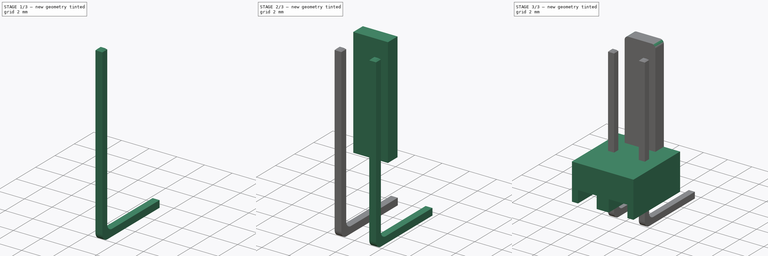
[diagram: build sequence overview — one tinted view per stage of 3, left to right]
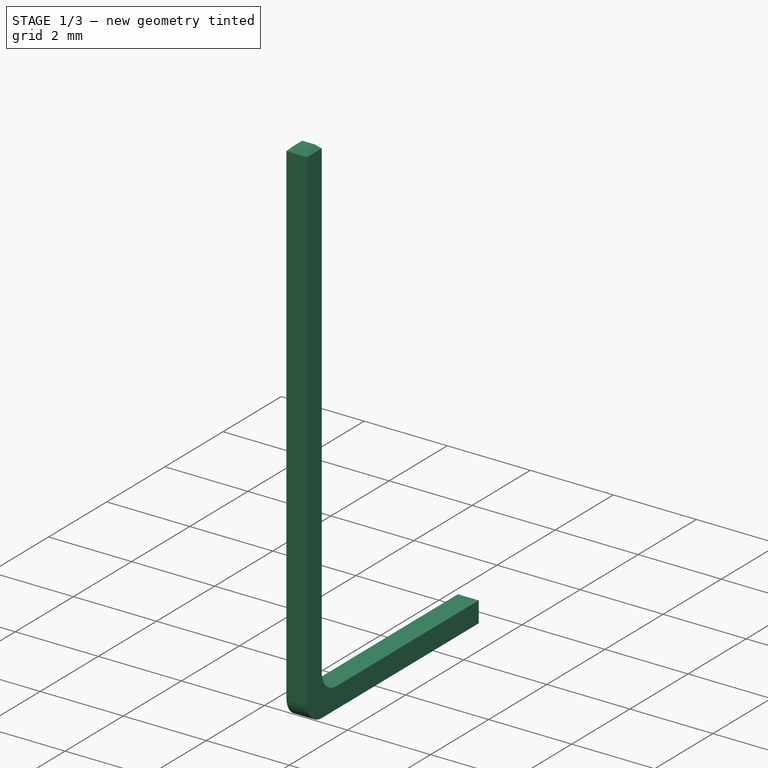
[diagram: stage 1 of 3 — iso view after this stage's code; geometry added in this stage tinted green]
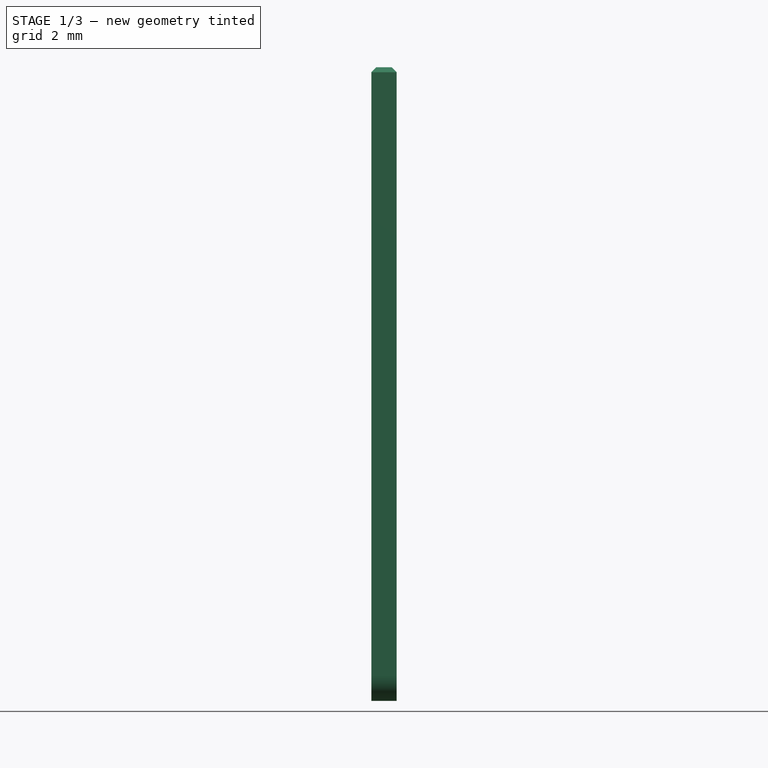
[diagram: stage 1 of 3 — front view after this stage's code; geometry added in this stage tinted green]
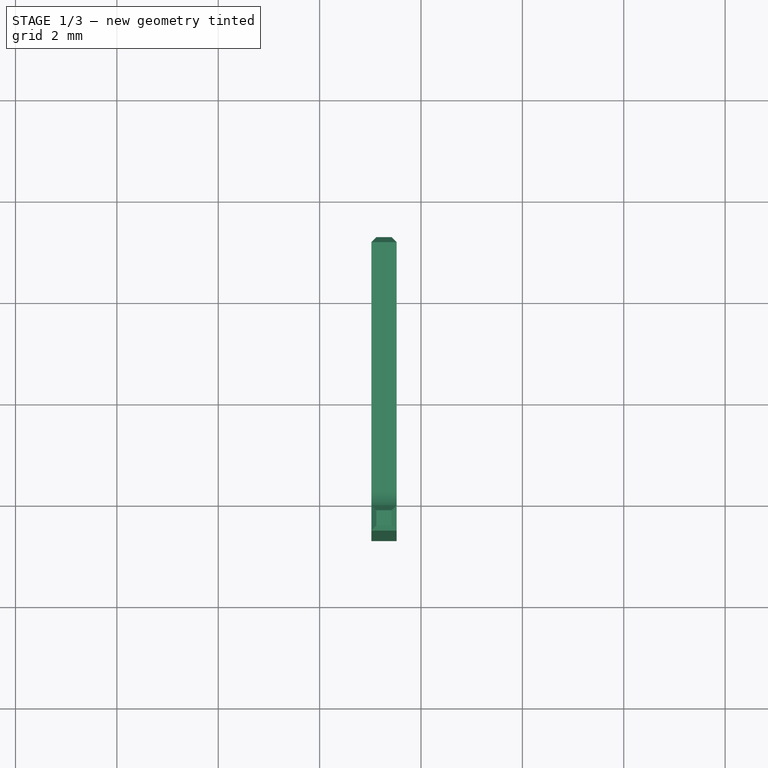
[diagram: stage 1 of 3 — top view after this stage's code; geometry added in this stage tinted green]
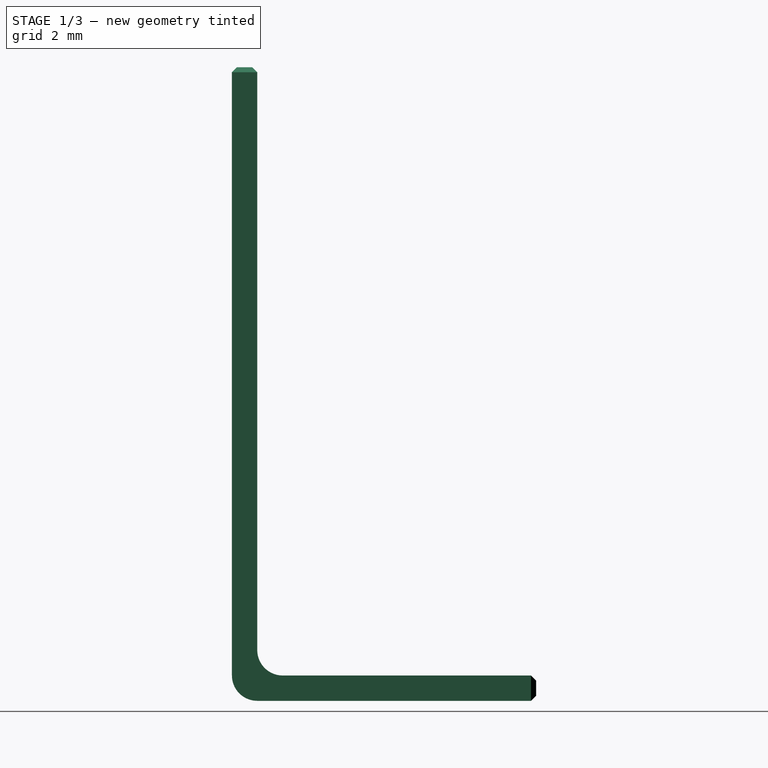
[diagram: stage 1 of 3 — right view after this stage's code; geometry added in this stage tinted green]
FCSTD DOCUMENT  (FreeCAD 0.16R6228 (Git))
Label: main_PA
License: All rights reserved
LicenseURL: http://en.wikipedia.org/wiki/All_rights_reserved
objects: Sketcher::SketchObject×3, PartDesign::Pad×3, Part::FeaturePython×2, PartDesign::Fillet×2, Spreadsheet::Sheet×1, PartDesign::Chamfer×1
note: 14 computed .brp shape members not serialized (recipe doc carries the construction recipe); baked Part::Feature solids carry a one-line shape summary decoded from their .brp

FEATURE [Sketcher::SketchObject] Sketch003
  Placement = pos=(1.02,0,0) rot=(0.57735,0.57735,0.57735;2.0944rad)
  sketch-geometry (6):
    g0: LineSegment StartX=-2.7 StartY=10.5 StartZ=0 EndX=-2.7 EndY=-2 EndZ=0
    g1: LineSegment StartX=-2.7 StartY=-2 StartZ=0 EndX=3.3 EndY=-2 EndZ=0
    g2: LineSegment StartX=3.3 StartY=-2 StartZ=0 EndX=3.3 EndY=-1.5 EndZ=0
    g3: LineSegment StartX=3.3 StartY=-1.5 StartZ=0 EndX=-2.2 EndY=-1.5 EndZ=0
    g4: LineSegment StartX=-2.2 StartY=-1.5 StartZ=0 EndX=-2.2 EndY=10.5 EndZ=0
    g5: LineSegment StartX=-2.2 StartY=10.5 StartZ=0 EndX=-2.7 EndY=10.5 EndZ=0
  constraints (18):
    c: Vertical(g0)
    c: Coincident(g0,g1)
    c: Horizontal(g1)
    c: Coincident(g1,g2)
    c: Coincident(g2,g3)
    c: Horizontal(g3)
    c: Coincident(g3,g4)
    c: Vertical(g4)
    c: Coincident(g4,g5)
    c: Coincident(g5,g0)
    c: Horizontal(g5)
    c: Vertical(g2)
    c: Equal(g2,g5)
    c: DistanceY(g2) = 0.5
    c: DistanceY(g-1,g4) = 10.5
    c: DistanceX(g-1,g0) = -2.7
    c: DistanceY(g-1,g0) = -2
    c: DistanceX(g1) = 6
FEATURE [PartDesign::Pad] Pad003
  Length = 0.5
  Length2 = 100
  Placement = pos=(1.02,0,0) rot=(0.57735,0.57735,0.57735;2.0944rad)
  Sketch = -> Sketch003
  Type = 0
FEATURE [PartDesign::Chamfer] Chamfer
  Base = -> Pad003 [Edge5,Edge8,Edge9,Edge10,Edge14,Edge1,Edge17,Edge18]
  Placement = pos=(1.02,0,0) rot=(0.57735,0.57735,0.57735;2.0944rad)
  Size = 0.1
FEATURE [PartDesign::Fillet] Fillet001
  Base = -> Chamfer [Edge22,Edge3]
  Placement = pos=(1.02,0,0) rot=(0.57735,0.57735,0.57735;2.0944rad)
  Radius = 0.5
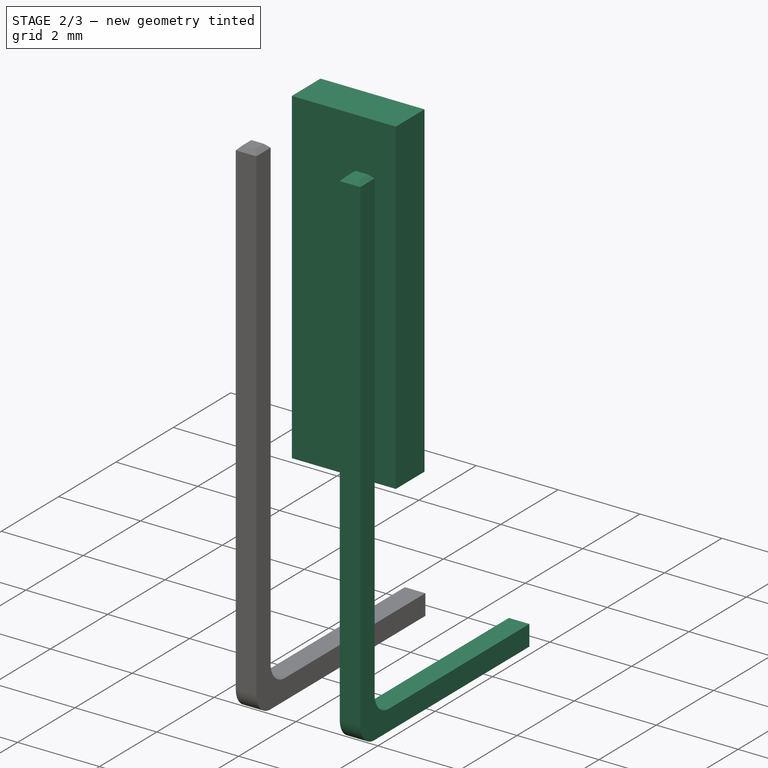
[diagram: stage 2 of 3 — iso view after this stage's code; geometry added in this stage tinted green]
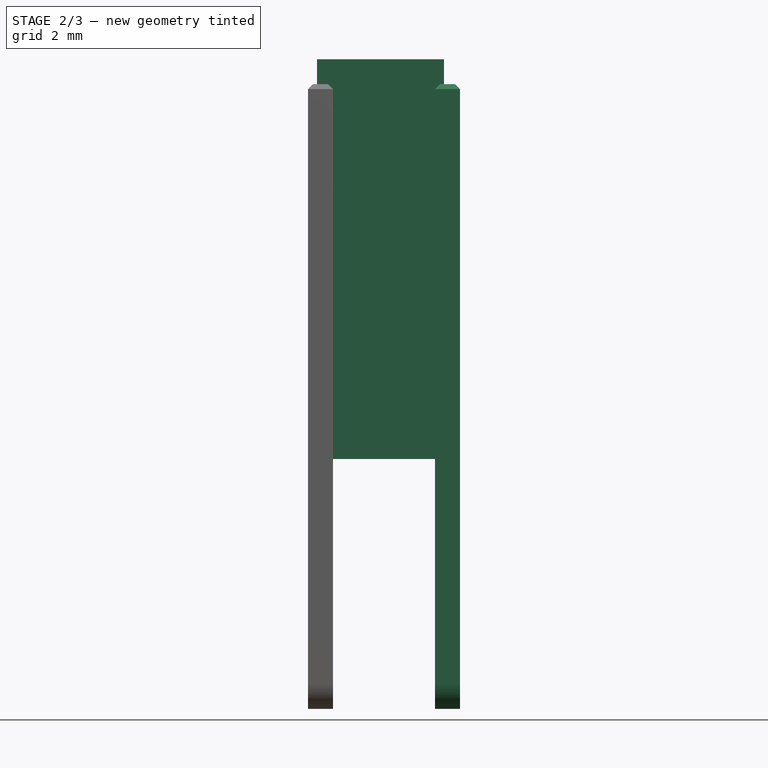
[diagram: stage 2 of 3 — front view after this stage's code; geometry added in this stage tinted green]
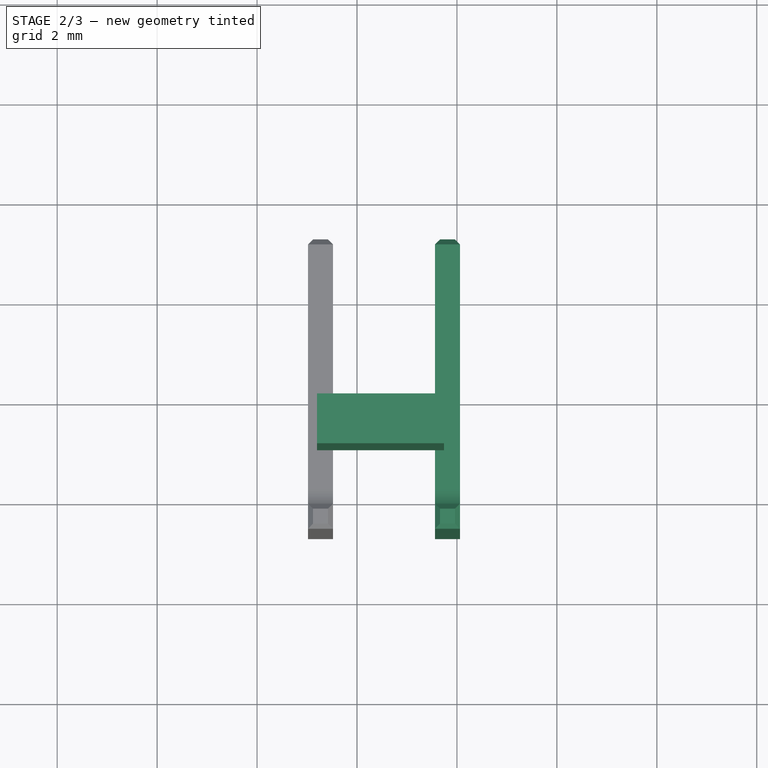
[diagram: stage 2 of 3 — top view after this stage's code; geometry added in this stage tinted green]
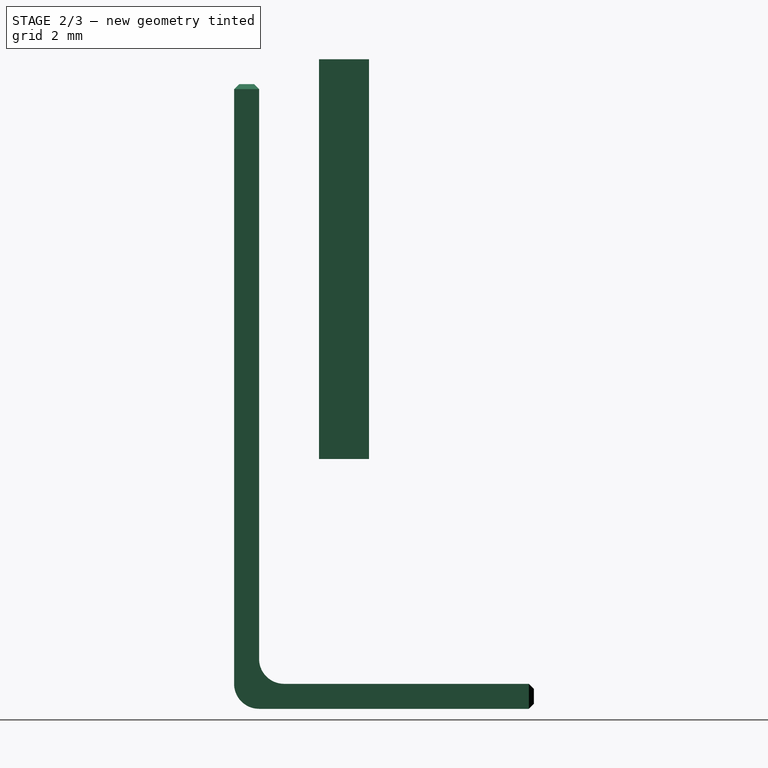
[diagram: stage 2 of 3 — right view after this stage's code; geometry added in this stage tinted green]
FEATURE [Spreadsheet::Sheet] Spreadsheet
  cells = A1=number; B1=2; A2=back; B2==(B1 - 1) * 2.54
FEATURE [Sketcher::SketchObject] Sketch002
  Placement = pos=(0,0,0) rot=(1,0,0;1.5708rad)
  expr: Constraints[6] = Spreadsheet.B2
  sketch-geometry (4):
    g0: LineSegment StartX=3.74 StartY=3 StartZ=0 EndX=3.74 EndY=11 EndZ=0
    g1: LineSegment StartX=1.2 StartY=11 StartZ=0 EndX=1.2 EndY=3 EndZ=0
    g2: LineSegment StartX=1.2 StartY=3 StartZ=0 EndX=3.74 EndY=3 EndZ=0
    g3: LineSegment StartX=3.74 StartY=11 StartZ=0 EndX=1.2 EndY=11 EndZ=0
  constraints (12):
    c: Vertical(g0)
    c: Vertical(g1)
    c: Coincident(g1,g2)
    c: Coincident(g2,g0)
    c: Horizontal(g2)
    c: DistanceY(g-1,g0) = 3
    c: DistanceX(g2) = 2.54
    c: Coincident(g0,g3)
    c: Coincident(g3,g1)
    c: Horizontal(g3)
    c: DistanceX(g-1,g1) = 1.2
    c: DistanceY(g0,g0) = -8
FEATURE [PartDesign::Pad] Pad002
  Length = 1
  Length2 = 100
  Placement = pos=(0,0,0) rot=(1,0,0;1.5708rad)
  Sketch = -> Sketch002
  Type = 0
FEATURE [Part::FeaturePython] Array001  # Draft array (typed FeaturePython)
  Angle = 360
  ArrayType = 0
  Axis = (0,0,1)
  Base = -> Fillet001
  Center = (0,0,0)
  Fuse = false
  IntervalAxis = (0,0,0)
  IntervalX = (2.54,0,0)
  IntervalY = (0,1,0)
  IntervalZ = (0,0,0)
  NumberPolar = 1
  NumberX = 2
  NumberY = 1
  NumberZ = 1
  expr: NumberX = Spreadsheet.B1
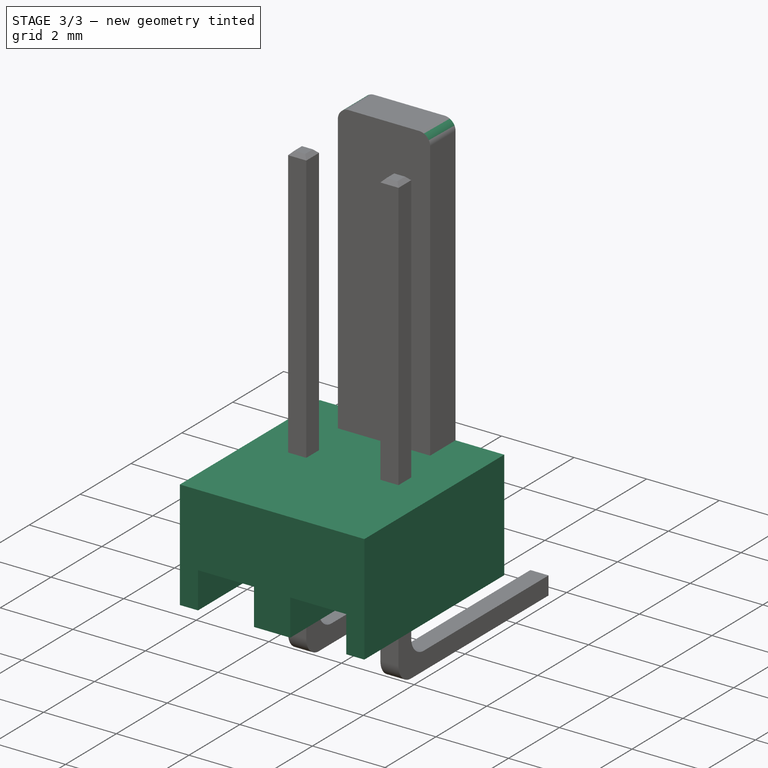
[diagram: stage 3 of 3 — iso view after this stage's code; geometry added in this stage tinted green]
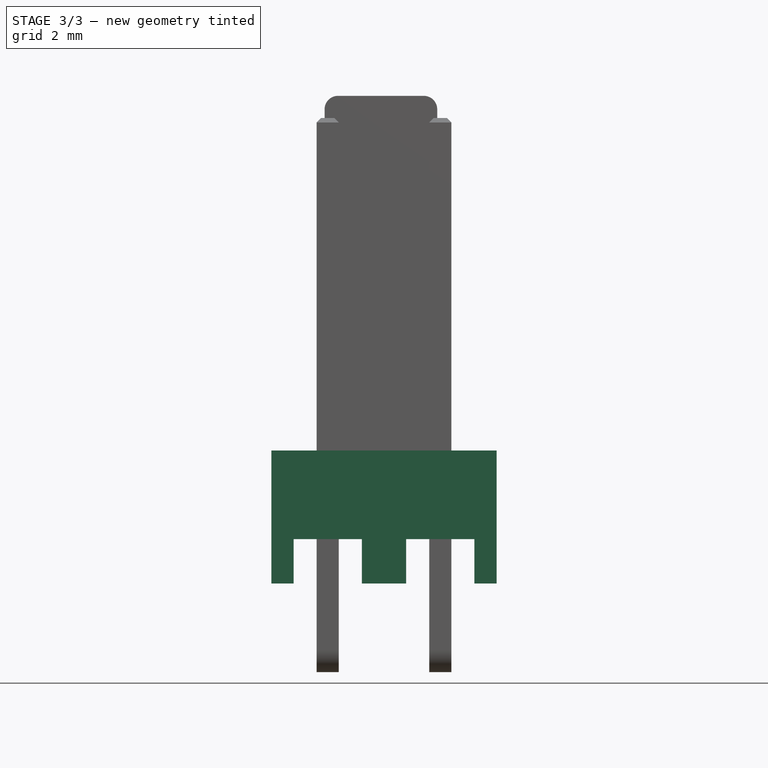
[diagram: stage 3 of 3 — front view after this stage's code; geometry added in this stage tinted green]
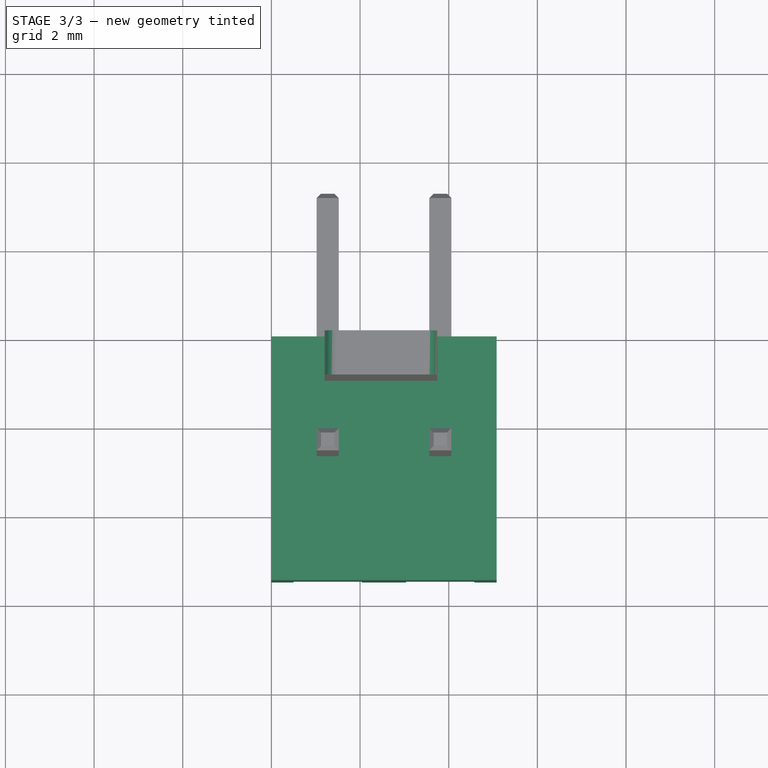
[diagram: stage 3 of 3 — top view after this stage's code; geometry added in this stage tinted green]
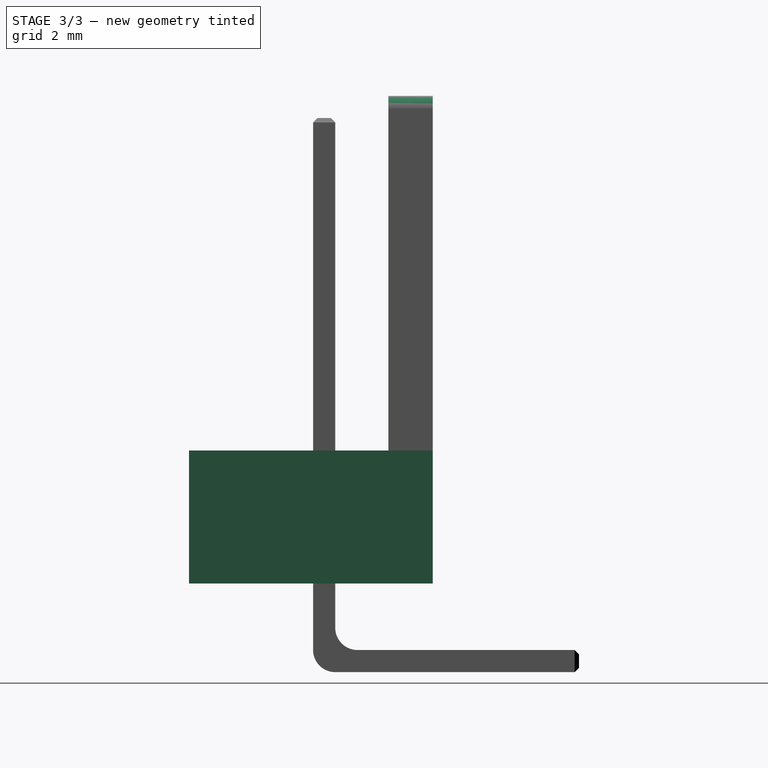
[diagram: stage 3 of 3 — right view after this stage's code; geometry added in this stage tinted green]
FEATURE [Sketcher::SketchObject] Sketch
  Placement = pos=(0,0,0) rot=(1,0,0;1.5708rad)
  sketch-geometry (8):
    g0: LineSegment StartX=0 StartY=0 StartZ=0 EndX=0 EndY=3 EndZ=0
    g1: LineSegment StartX=0 StartY=3 StartZ=0 EndX=2.54 EndY=3 EndZ=0
    g2: LineSegment StartX=2.54 StartY=3 StartZ=0 EndX=2.54 EndY=0 EndZ=0
    g3: LineSegment StartX=2.54 StartY=0 StartZ=0 EndX=2.04 EndY=0 EndZ=0
    g4: LineSegment StartX=2.04 StartY=0 StartZ=0 EndX=2.04 EndY=1 EndZ=0
    g5: LineSegment StartX=2.04 StartY=1 StartZ=0 EndX=0.5 EndY=1 EndZ=0
    g6: LineSegment StartX=0.5 StartY=1 StartZ=0 EndX=0.5 EndY=0 EndZ=0
    g7: LineSegment StartX=0.5 StartY=0 StartZ=0 EndX=0 EndY=0 EndZ=0
  constraints (23):
    c: Coincident(g-1,g0)
    c: Vertical(g0)
    c: Coincident(g0,g1)
    c: Horizontal(g1)
    c: Coincident(g1,g2)
    c: PointOnObject(g2,g-1)
    c: Vertical(g2)
    c: Coincident(g2,g3)
    c: Coincident(g3,g4)
    c: Coincident(g4,g5)
    c: Horizontal(g5)
    c: Coincident(g5,g6)
    c: Vertical(g6)
    c: Coincident(g6,g7)
    c: Coincident(g7,g0)
    c: PointOnObject(g6,g-1)
    c: PointOnObject(g3,g-1)
    c: Vertical(g4)
    c: Equal(g7,g3)
    c: DistanceX(g7) = -0.5
    c: DistanceX(g1) = 2.54
    c: DistanceY(g2) = -3
    c: DistanceY(g6) = -1
FEATURE [PartDesign::Pad] Pad
  Length = 5.5
  Length2 = 100
  Placement = pos=(0,0,0) rot=(1,0,0;1.5708rad)
  Sketch = -> Sketch
  Type = 0
FEATURE [Part::FeaturePython] Array  # Draft array (typed FeaturePython)
  Angle = 360
  ArrayType = 0
  Axis = (0,0,1)
  Base = -> Pad
  Center = (0,0,0)
  Fuse = false
  IntervalAxis = (0,0,0)
  IntervalX = (2.54,0,0)
  IntervalY = (0,1,0)
  IntervalZ = (0,0,0)
  NumberPolar = 1
  NumberX = 2
  NumberY = 1
  NumberZ = 1
  expr: NumberX = Spreadsheet.B1
FEATURE [PartDesign::Fillet] Fillet
  Base = -> Pad002 [Edge5,Edge2]
  Placement = pos=(0,0,0) rot=(1,0,0;1.5708rad)
  Radius = 0.3
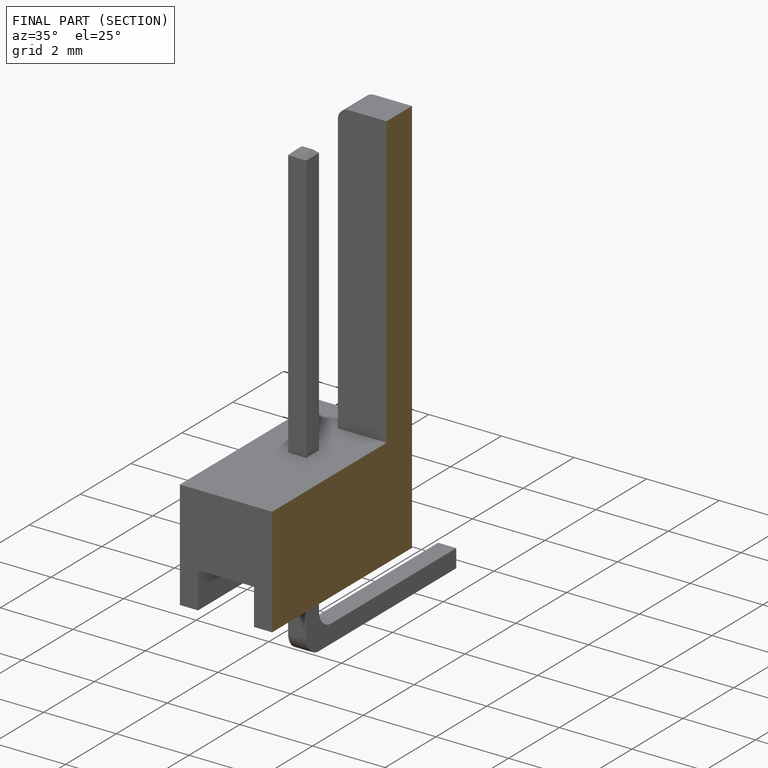
[diagram: finished part — half-section view (interior)]
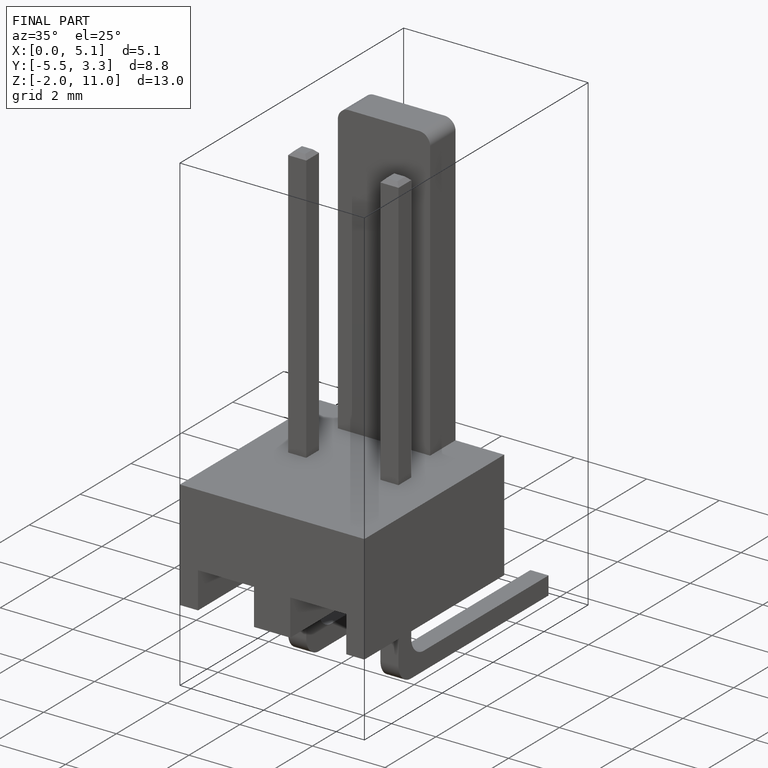
[diagram: finished part — iso view with bounding-box wireframe]
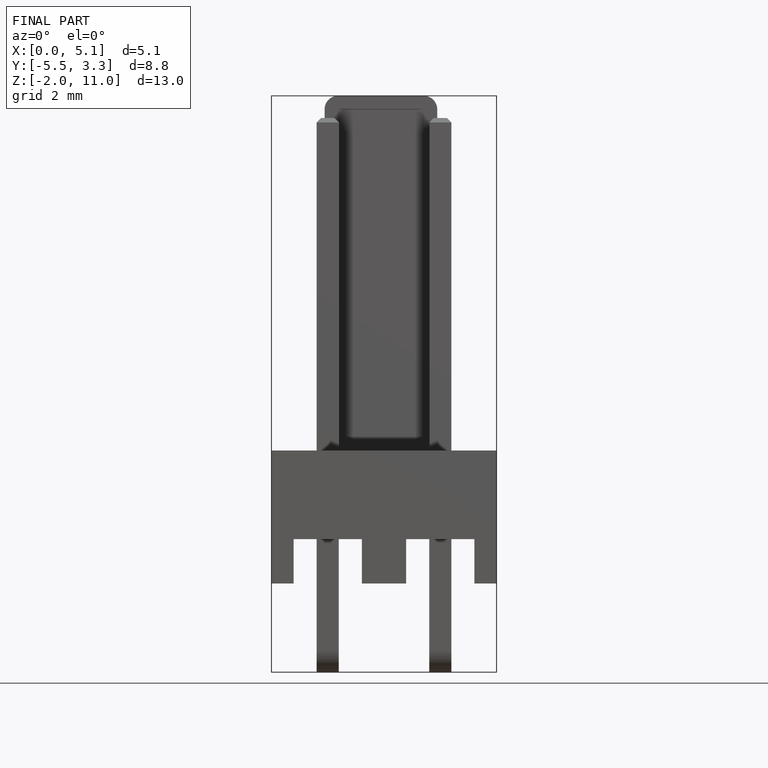
[diagram: finished part — front view with bounding-box wireframe]
